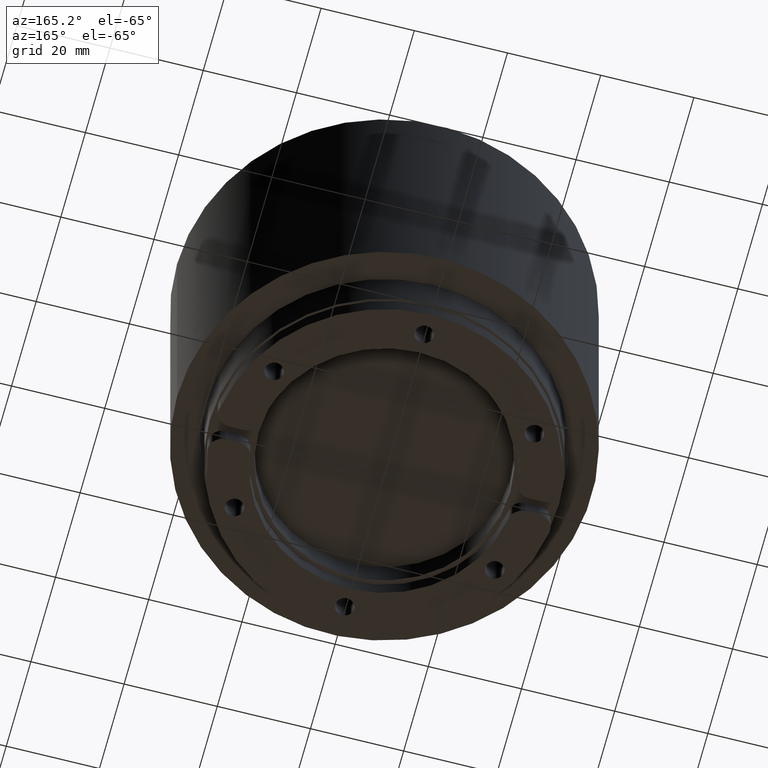
[diagram: clean part render]
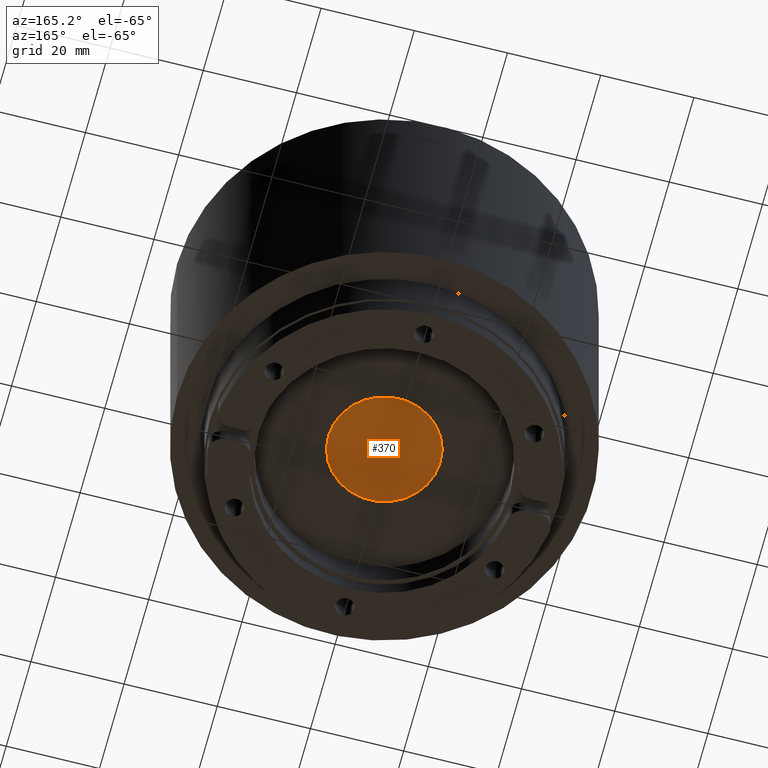
[diagram: same view with one face highlighted and labeled with its STEP entity id]
A machine part, auxiliary view. The second image highlights one B-rep face of the part: STEP entity #370.
In plain terms, the highlighted planar face has unit normal (-0, -0, 1).
Its self-contained STEP definition (entity closure, byte-faithful):
#350=CARTESIAN_POINT('',(12.000000000000002,1.469576E-015,30.0));
#351=VERTEX_POINT('',#350);
#352=CARTESIAN_POINT('',(0.0,0.0,30.0));
#353=DIRECTION('',(0.0,0.0,-1.0));
#354=DIRECTION('',(-1.0,0.0,0.0));
#355=AXIS2_PLACEMENT_3D('',#352,#353,#354);
#356=CIRCLE('',#355,12.000000000000002);
#357=EDGE_CURVE('',#351,#351,#356,.T.);
#362=CARTESIAN_POINT('',(0.0,0.0,30.0));
#363=DIRECTION('',(0.0,0.0,-1.0));
#364=DIRECTION('',(-1.0,0.0,0.0));
#365=AXIS2_PLACEMENT_3D('',#362,#363,#364);
#366=PLANE('',#365);
#367=ORIENTED_EDGE('',*,*,#357,.F.);
#368=EDGE_LOOP('',(#367));
#369=FACE_OUTER_BOUND('',#368,.T.);
#370=ADVANCED_FACE('',(#369),#366,.F.);